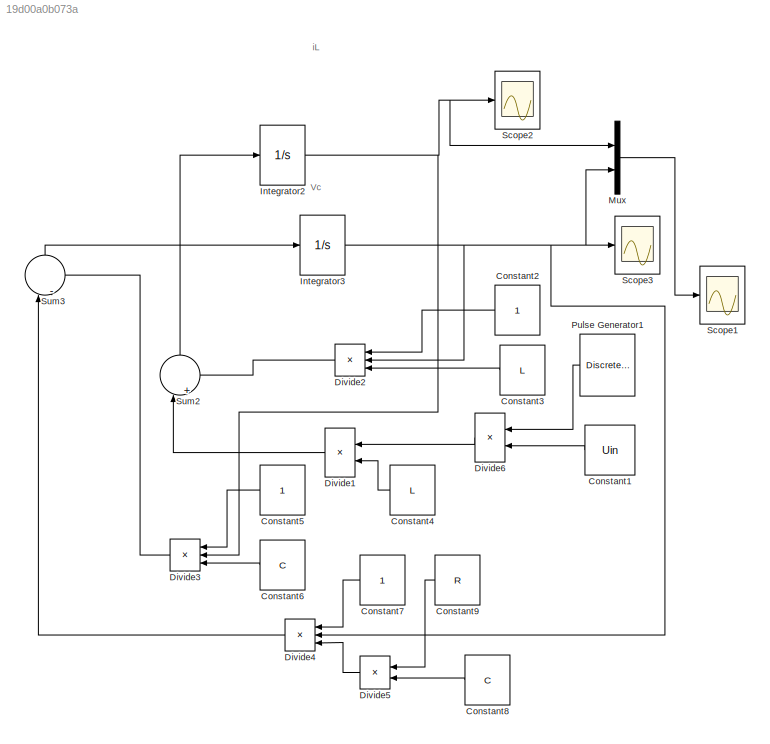
MODEL slx_19d00a0b073a
KIND model
CONFIG AbsTol = auto
CONFIG EnableMultiTasking = off
CONFIG FixedStep = auto
CONFIG MaxStep = auto
CONFIG MinStep = auto
CONFIG RelTol = 1e-3
CONFIG SampleTimeConstraint = Unconstrained
CONFIG SolverName = ode23
CONFIG StartTime = 0.0
CONFIG StopTime = 0.01
WORKSPACE source: mxarray member
WORKSPACE C = 1e-05
WORKSPACE L = 0.002
WORKSPACE R = 10
WORKSPACE Uin = 32
BLOCK [Constant] Constant1
  NameLocation = top
  Value = Uin
BLOCK [Constant] Constant2
  NameLocation = top
BLOCK [Constant] Constant3
  NameLocation = top
  Value = L
BLOCK [Constant] Constant4
  NameLocation = top
  Value = L
BLOCK [Constant] Constant5
  NameLocation = top
BLOCK [Constant] Constant6
  NameLocation = top
  Value = C
BLOCK [Constant] Constant7
  NameLocation = top
BLOCK [Constant] Constant8
  NameLocation = top
  Value = C
BLOCK [Constant] Constant9
  NameLocation = top
  Value = R
BLOCK [Product] Divide1
  Inputs = */
  NameLocation = top
BLOCK [Product] Divide2
  Inputs = **/
  NameLocation = top
BLOCK [Product] Divide3
  Inputs = **/
  NameLocation = top
BLOCK [Product] Divide4
  Inputs = **/
  NameLocation = top
BLOCK [Product] Divide5
  Inputs = **
  NameLocation = top
BLOCK [Product] Divide6
  Inputs = **
  NameLocation = top
BLOCK [Integrator] Integrator2
BLOCK [Integrator] Integrator3
BLOCK [Mux] Mux
  DisplayOption = bar
  Inputs = 2
BLOCK [DiscretePulseGenerator] Pulse Generator1
  NameLocation = top
  Period = 1e-5
  PulseType = Time based
  PulseWidth = 40
BLOCK [Scope] Scope1
  ActiveDisplayYMaximum = 1.5242194609345074
  ActiveDisplayYMinimum = -0.12455196763692078
  DataLoggingVariableName = ScopeData1
  Floating = off
  GraphicalSettings = {"Style":{"BackgroundColor":[0.12941176470588237,0.12941176470588237,0.12941176470588237],"AxesColor":[0.07058823529411765,0.07058823529411765,0.07058823529411765],"LabelsColor":[0.8509803921568627,0.8509803921568627,0.8509803921568627],"PreserveColors":false,"Visible":[true,true],"LineStyle":["-","-"],"LineWidth":[0.75,1.5],"BarWidth":[0.9,0.9],"LineColor":[[0,1,0],"auto"],"LineFaceAlpha":[1,1],"...<+2077ch>
  MultipleDisplayCache = [{"MaxYLimMag":1.55809,"MaxYLimReal":1.5242194609345074,"MinYLimMag":0,"MinYLimReal":-0.12455196763692078,"PlotAsMagnitudePhase":false,"ShowGrid":true,"ShowLegend":true,"Title":"%<SignalLabel>","YLabel":""}]
  NumInputPorts = 1
  ScopeFrameLocation = window
  ShowLegend = on
  WasSavedAsWebScope = on
  WindowPosition = [488.000000,222.000000,560.000000,420.000000,]
BLOCK [Scope] Scope2
  ActiveDisplayYMaximum = 1.55809
  ActiveDisplayYMinimum = -0.17312
  DataLoggingVariableName = ScopeData1
  Floating = off
  GraphicalSettings = {"GraphicalSettings":{"LegacySettings":true,"Style":{"AxesScalingProperties":{"ScaleAxesLimitsAtStop":false},"Style":{"AxesColor":"[0 0 0]","ChannelNames":[""],"ColorOrder":"[1 0.909803921568627 0.392156862745098;0.149019607843137 0.549019607843137 0.866666666666667;0.96078431372549 0.466666666666667 0.16078431372549;0.286274509803922 0.858823529411765 0.250980392156863;0.752941176470588 0.3607843...<+584ch>
  MultipleDisplayCache = [{"MaxYLimMag":1.55809,"MaxYLimReal":1.55809,"MinYLimMag":0,"MinYLimReal":-0.17312,"PlotAsMagnitudePhase":false,"ShowGrid":true,"ShowLegend":true,"Title":"%<SignalLabel>","YLabel":""}]
  NumInputPorts = 1
  ShowLegend = on
  WasSavedAsWebScope = on
BLOCK [Scope] Scope3
  ActiveDisplayYMaximum = 14.49578
  ActiveDisplayYMinimum = 3.36858
  DataLoggingVariableName = ScopeData2
  Floating = off
  GraphicalSettings = {"GraphicalSettings":{"LegacySettings":true,"Style":{"AxesScalingProperties":{"ScaleAxesLimitsAtStop":false},"Style":{"AxesColor":"[0 0 0]","ChannelNames":[""],"ColorOrder":"[1 0.909803921568627 0.392156862745098;0.149019607843137 0.549019607843137 0.866666666666667;0.96078431372549 0.466666666666667 0.16078431372549;0.286274509803922 0.858823529411765 0.250980392156863;0.752941176470588 0.3607843...<+556ch>
  MultipleDisplayCache = [{"MaxYLimMag":14.49578,"MaxYLimReal":14.49578,"MinYLimMag":3.36858,"MinYLimReal":3.36858,"PlotAsMagnitudePhase":false,"ShowGrid":true,"ShowLegend":false,"Title":"%<SignalLabel>","YLabel":""}]
  NumInputPorts = 1
  WasSavedAsWebScope = on
BLOCK [Sum] Sum2
  Inputs = |+-
  NameLocation = right
BLOCK [Sum] Sum3
  Inputs = |-+
  NameLocation = right
ANNOTATION (root): Vc
ANNOTATION (root): iL
LINE Constant1:1 -> Divide6:2
LINE Constant2:1 -> Divide2:1
LINE Constant3:1 -> Divide2:3
LINE Constant4:1 -> Divide1:2
LINE Constant5:1 -> Divide3:1
LINE Constant6:1 -> Divide3:3
LINE Constant7:1 -> Divide4:1
LINE Constant8:1 -> Divide5:2
LINE Constant9:1 -> Divide5:1
LINE Divide1:1 -> Sum2:1
LINE Divide2:1 -> Sum2:2
LINE Divide3:1 -> Sum3:2
LINE Divide4:1 -> Sum3:1
LINE Divide5:1 -> Divide4:3
LINE Divide6:1 -> Divide1:1
NET Integrator2:1 -> Divide3:2, Mux:1, Scope2:1
NET Integrator3:1 -> Divide2:2, Divide4:2, Mux:2, Scope3:1
LINE Mux:1 -> Scope1:1
LINE Pulse Generator1:1 -> Divide6:1
LINE Sum2:1 -> Integrator2:1
LINE Sum3:1 -> Integrator3:1
note: NET lines group one-source signal fan-out (src -> all destinations, sorted); 1:1 wires keep LINE
